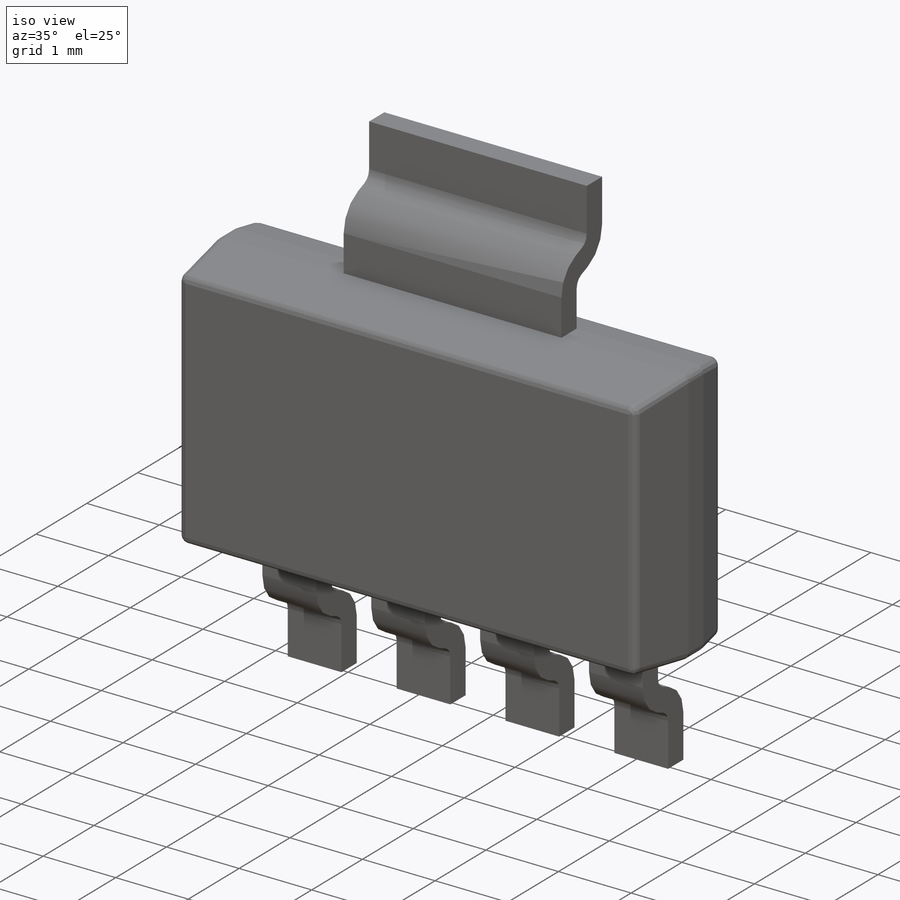
[diagram: iso view]
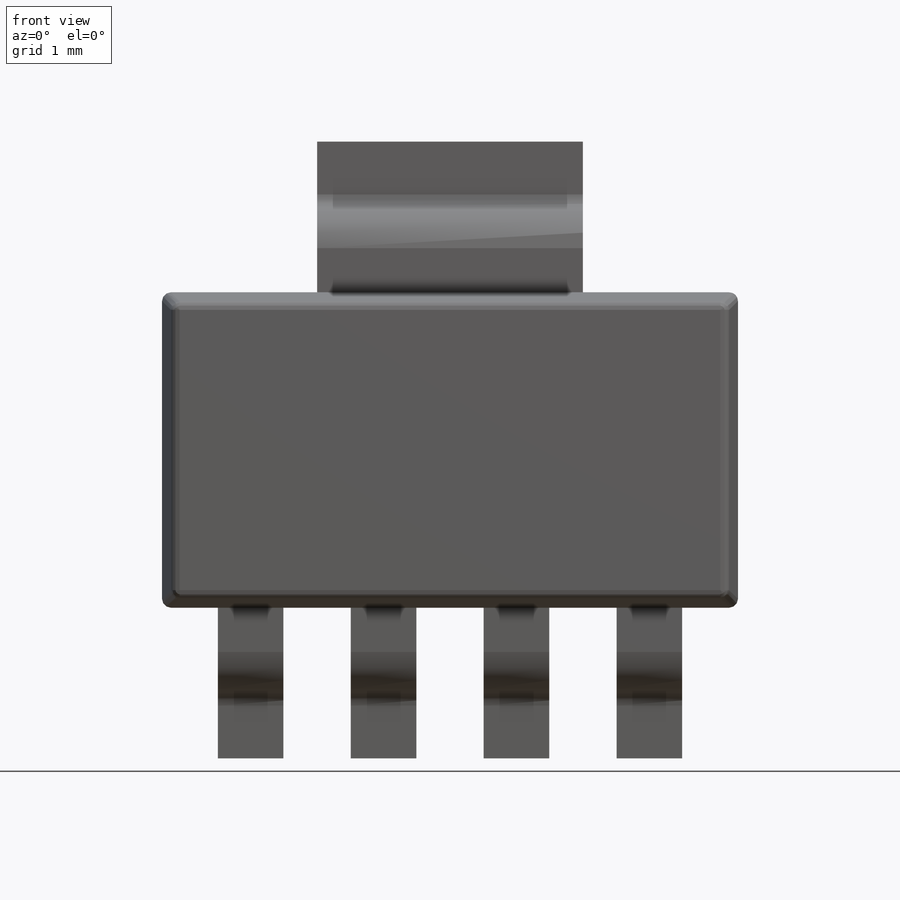
[diagram: front view]
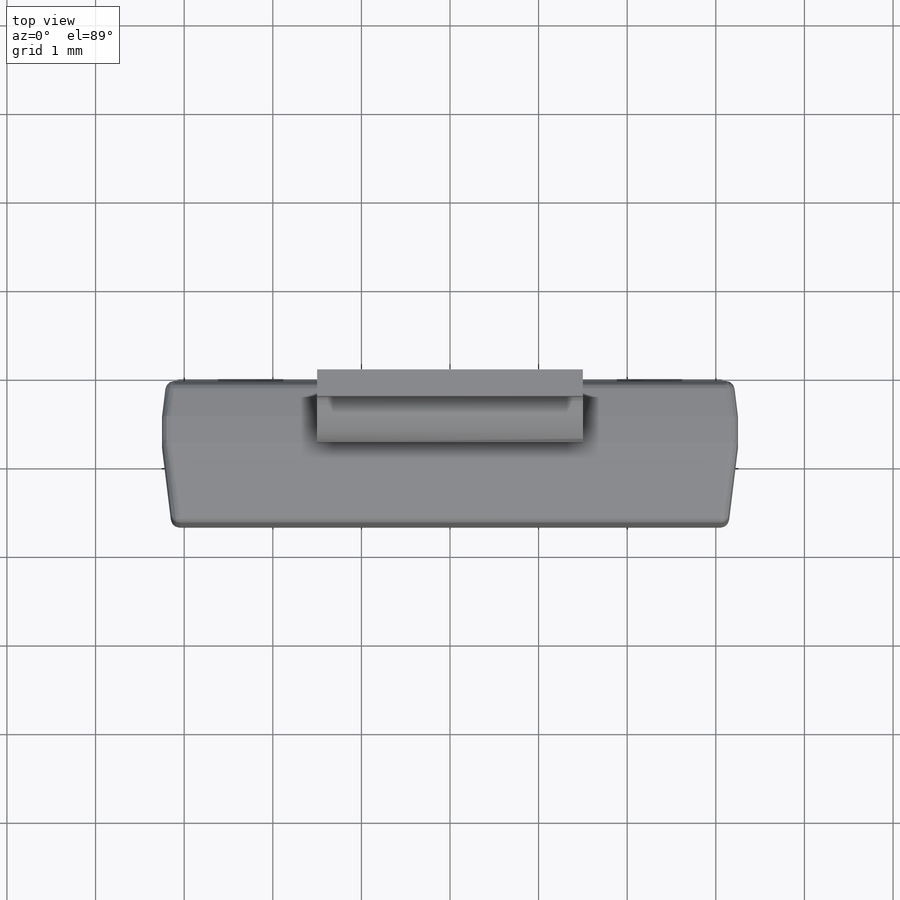
[diagram: top view]
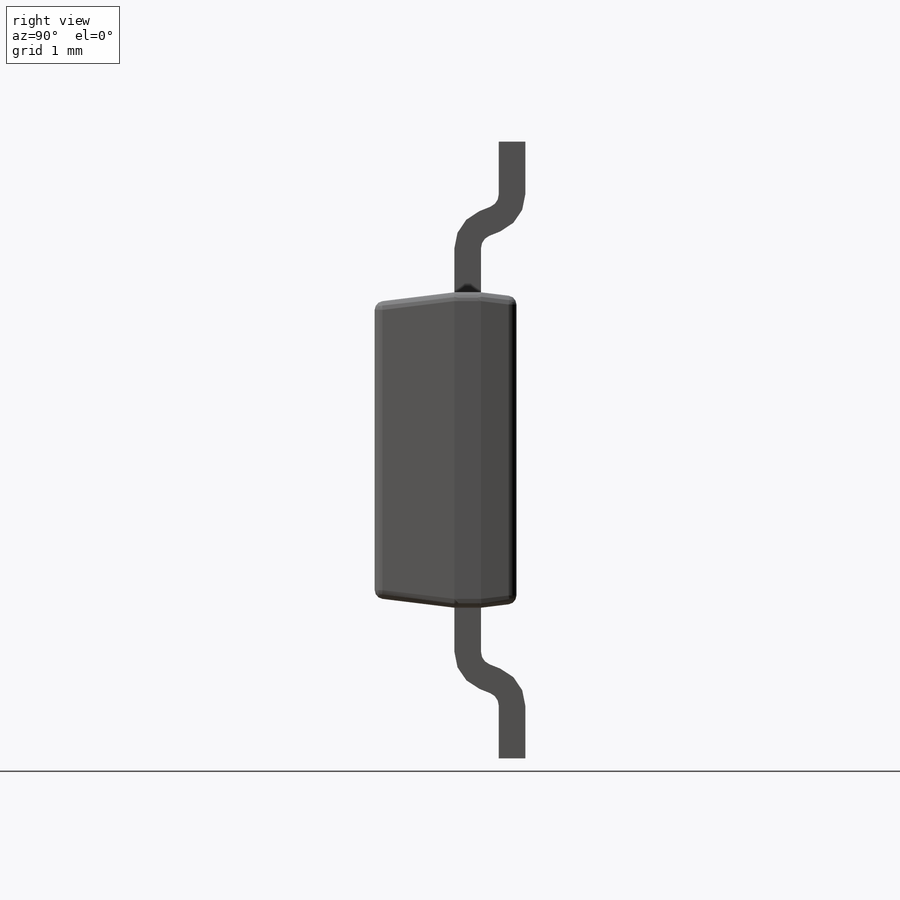
[diagram: right view]
SOLIDWORKS PART (.sldprt)
format: sldprt  version: not decoded by parser v0  size: 293,888 bytes
history: native  units: mm
features: sketch x3, extrude x2, chamfer x2, material x1, plane x1, cut_extrude x1, fillet x1 (+16 scaffold rows collapsed)
feature tree (27):
  scaffold x16  (default folders/planes/origin — collapsed)
  material  "Material <not specified>"
  plane  "Plane1"  Offset=0.1mm
  sketch  "Sketch1"
  extrude  "Extrude1"  Depth=1.6mm
  chamfer  "Chamfer1"  Distance=0.9mm Angle=7deg
  chamfer  "Chamfer2"  Distance=0.4mm Angle=7deg
  sketch  "Sketch2"  dims[D1=1.7mm]
  extrude  "Extrude2"  Depth=0.8mm
  sketch  "Sketch3"  dims[c1.D1=0.15mm c1.D2=0.15mm c2.D1=0.3mm c2.D2=0.3mm c3.D1=0.3mm]
  cut_extrude  "Extrude3"  [1 undecoded]
  fillet  "Fillet1"  Radius=0.1mm
decode coverage: 7 of 9 modeling features carry decoded parameters
note: 1 parameter value undecoded
note: suppression state not decoded; provenance and decode notes live in map.json
